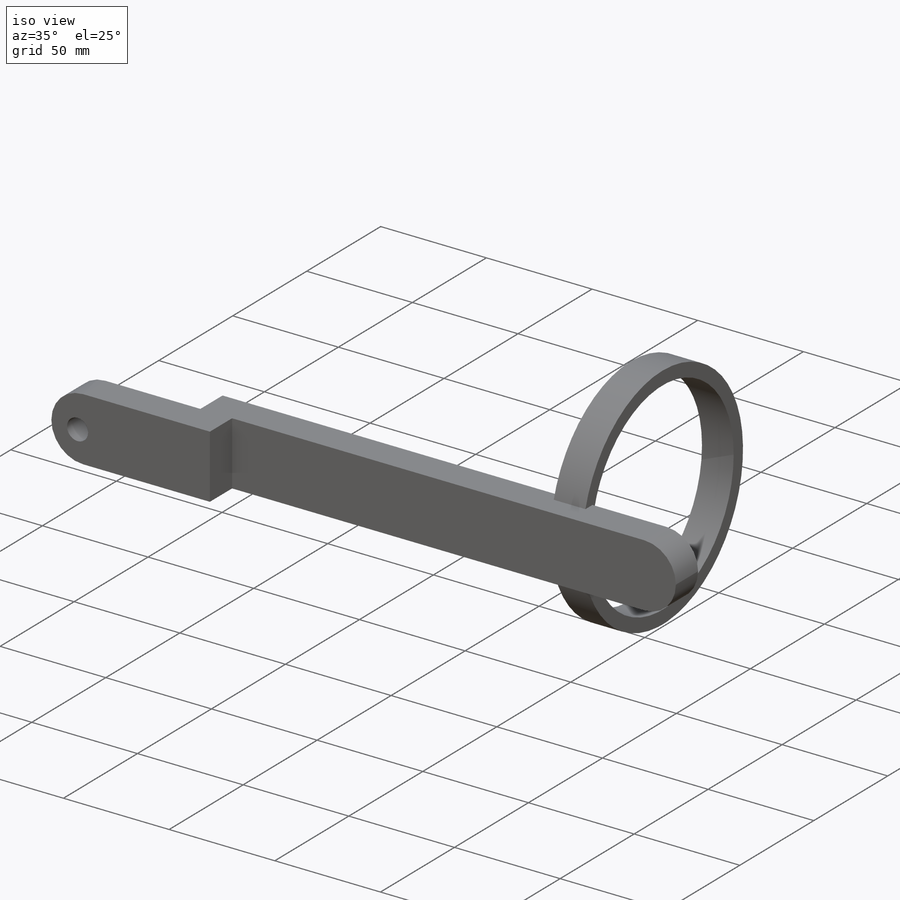
[diagram: iso view]
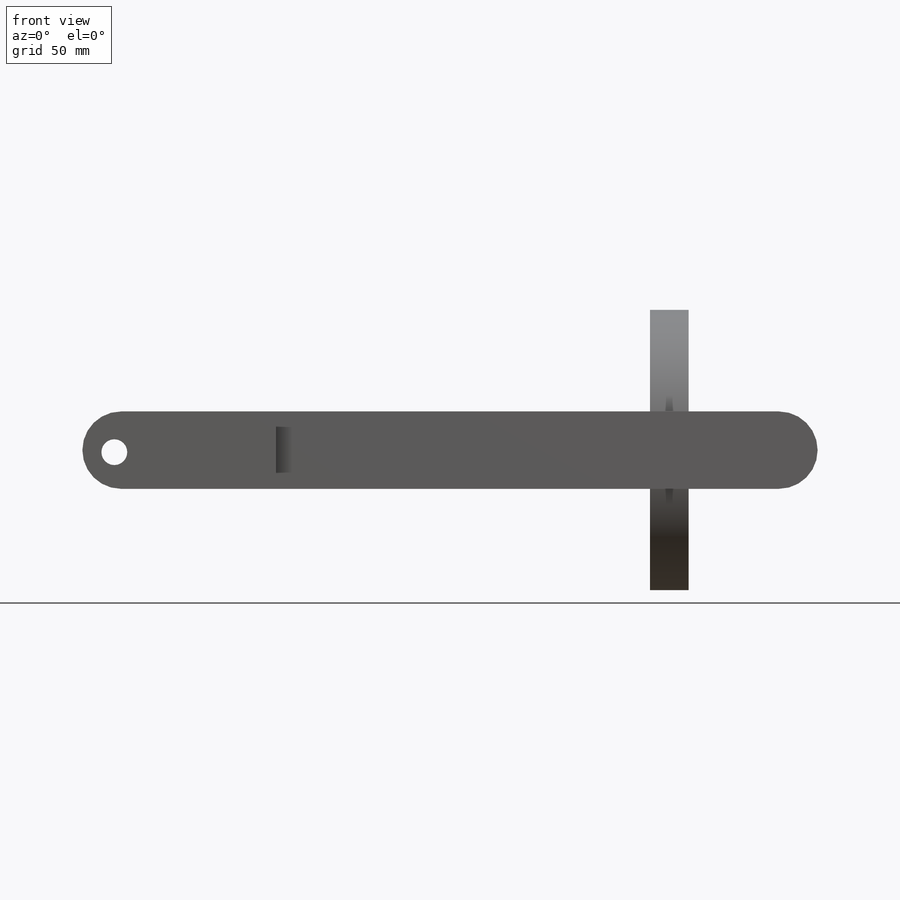
[diagram: front view]
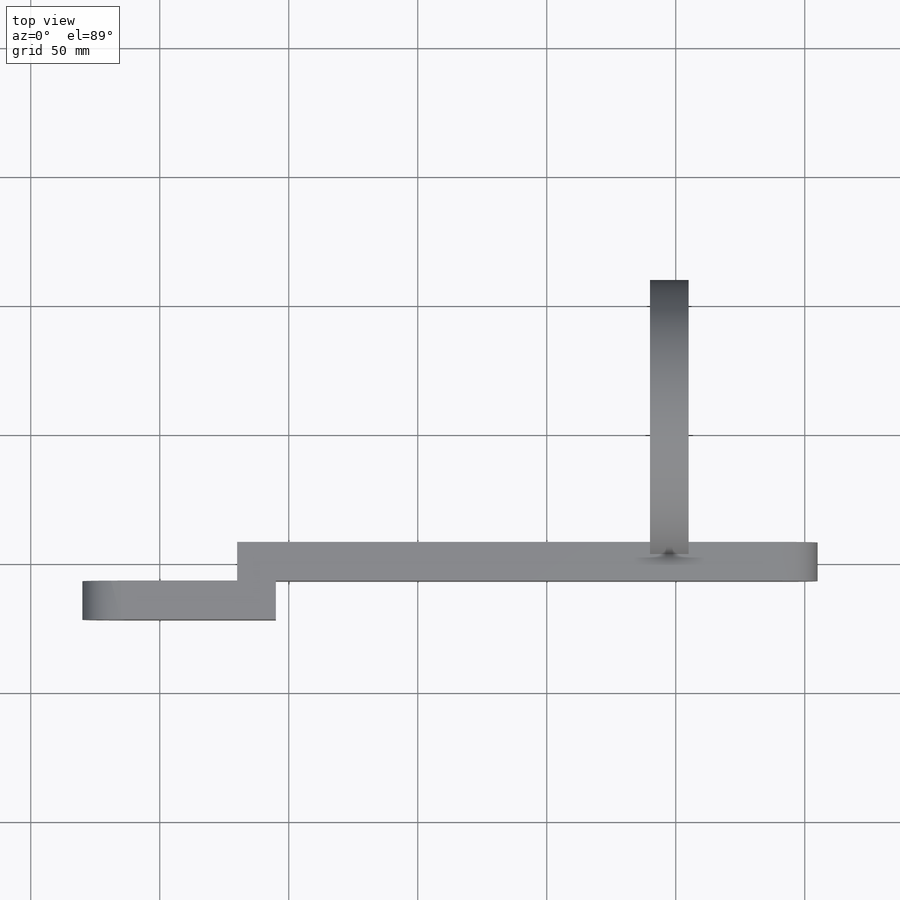
[diagram: top view]
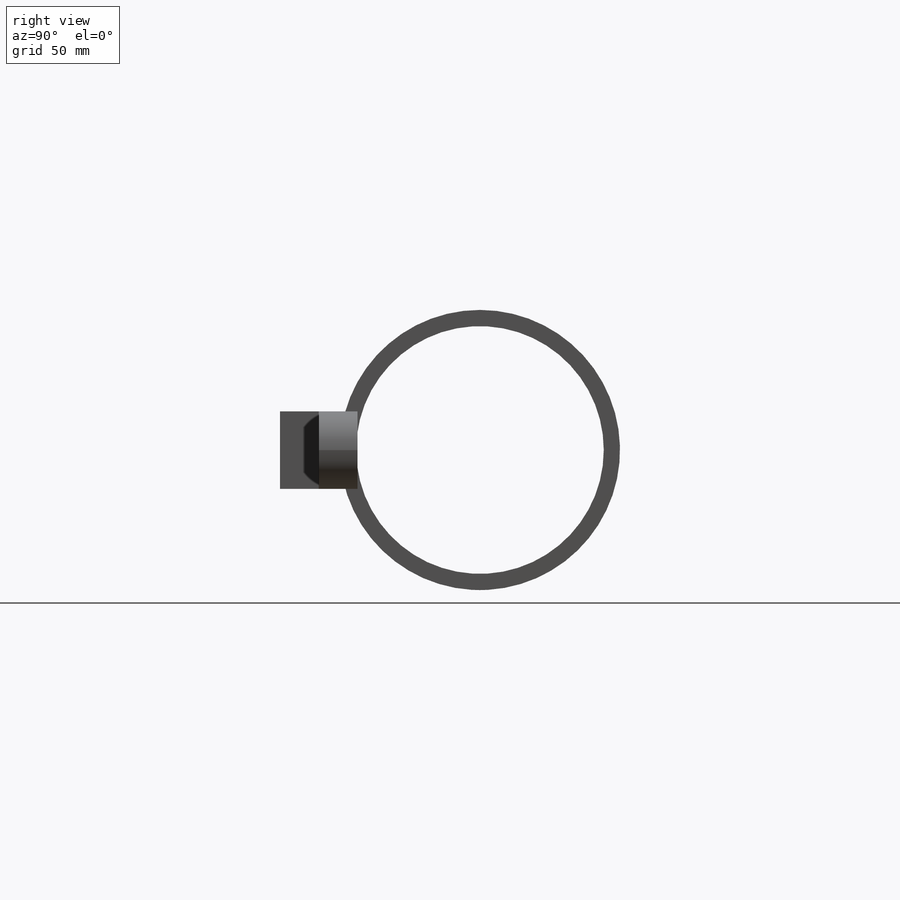
[diagram: right view]
SOLIDWORKS PART (.sldprt)
format: sldprt  version: not decoded by parser v0  size: 181,248 bytes
history: native  units: mm
features: sketch x4, extrude x2, material x1, fillet x1, cut_extrude x1 (+12 scaffold rows collapsed)
feature tree (21):
  scaffold x12  (default folders/planes/origin — collapsed)
  material  "Material <not specified>"
  sketch  "Sketch1"  dims[D1=15.0mm D2=210.0mm D3=15.0mm D4=30.0mm D5=15.0mm D6=60.0mm]
  extrude  "Boss-Extrude2"  Depth=30mm
  fillet  "Fillet1"  Radius=15mm
  sketch  "3DSketch1"  dims[D1=40.0mm]
  extrude  "Boss-Extrude3"  Depth=0.0001mm
  sketch  "Sketch3"  dims[D1=96.0mm]
  cut_extrude  "Cut-Extrude1"  Depth=15.0001mm
  sketch  "Sketch4"  dims[c1.D1=10.0mm c2.D1=17.0mm]
decode coverage: 8 of 8 modeling features carry decoded parameters
note: suppression state not decoded; provenance and decode notes live in map.json
